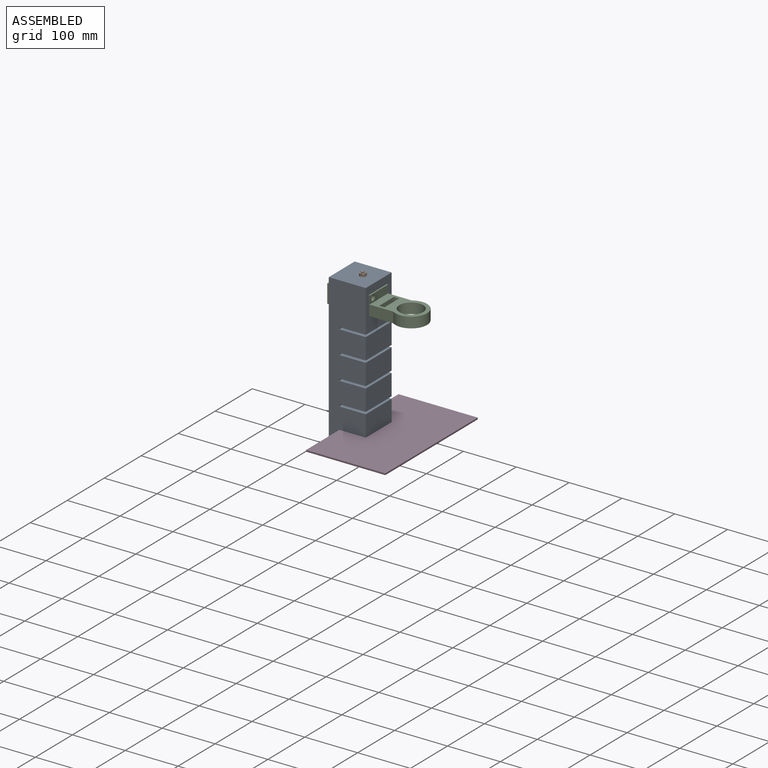
[diagram: assembled view]
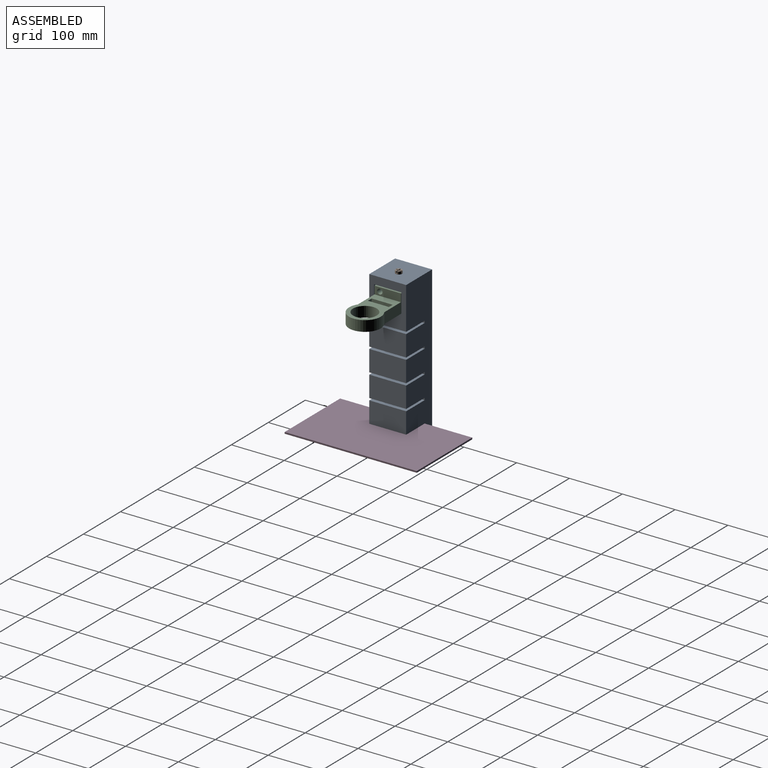
[diagram: assembled view, second angle]
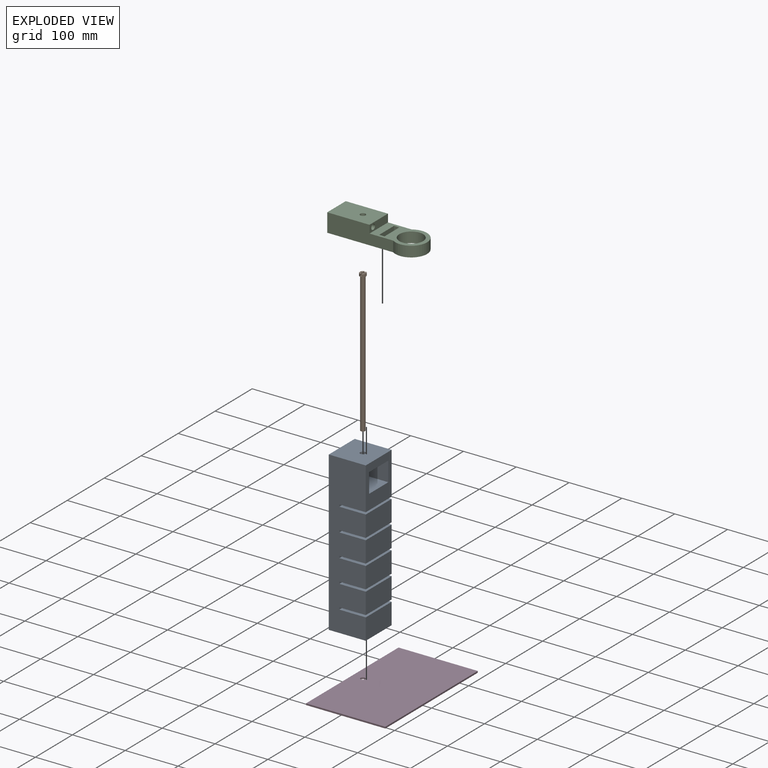
[diagram: exploded view]
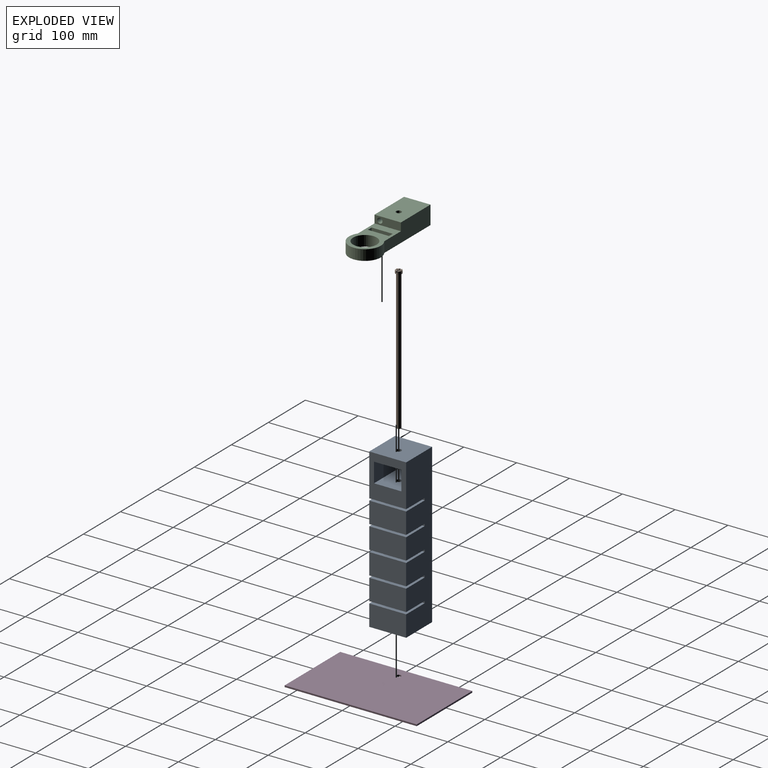
[diagram: exploded view, second angle]
ASSEMBLY  parts=4 mates=3
PART A: 38 faces, bbox 70x300x70 mm
  f0: plane 70x40mm, normal (1,0,0), area 2800mm2, adj f5,f6,f17,f28
  f1: plane 70x40mm, normal (1,0,0), area 2800mm2, adj f5,f6,f24,f27
  f2: plane 70x40mm, normal (1,0,0), area 2800mm2, adj f5,f6,f21,f26
  f3: plane 80x70mm, normal (1,0,0), area 3676mm2, adj f5,f6,f10,f11,f12,f13,f14,f18
  f4: plane 70x40mm, normal (1,0,0), area 2800mm2, adj f5,f6,f15,f20
  f5: plane 300x70mm, normal (0,0,1), area 20000mm2, adj f0,f1,f2,f3,f4,f7,f8,f9
  f6: plane 300x70mm, normal (0,0,-1), area 20000mm2, adj f0,f1,f2,f3,f4,f7,f8,f9
  f7: plane 300x70mm, normal (-1,0,0), area 19076mm2, adj f5,f6,f9,f10,f11,f12,f13,f14
  f8: plane 70x40mm, normal (1,0,0), area 2800mm2, adj f5,f6,f9,f23
  f9: plane 70x70mm, normal (0,-1,0), area 4900mm2, adj f5,f6,f7,f8
  f10: plane 70x70mm, normal (0,1,0), area 4821.5mm2, adj f3,f5,f6,f7,f37
  f11: plane 70x52mm, normal (0,-1,0), area 3561.5mm2, adj f3,f7,f12,f14,f37
  f12: plane 70x37mm, normal (0,0,-1), area 2590mm2, adj f3,f7,f11,f13
  f13: plane 70x52mm, normal (0,1,0), area 3561.5mm2, adj f3,f7,f12,f14,f36
  f14: plane 70x37mm, normal (0,0,1), area 2590mm2, adj f3,f7,f11,f13
  f15: plane 70x50mm, normal (0,-1,0), area 3421.5mm2, adj f4,f5,f6,f16,f35
  f16: plane 70x4mm, normal (1,0,0), area 280mm2, adj f5,f6,f15,f17
  f17: plane 70x50mm, normal (0,1,0), area 3421.5mm2, adj f0,f5,f6,f16,f30
  f18: plane 70x50mm, normal (0,-1,0), area 3421.5mm2, adj f3,f5,f6,f19,f36
  f19: plane 70x4mm, normal (1,0,0), area 280mm2, adj f5,f6,f18,f20
  f20: plane 70x50mm, normal (0,1,0), area 3421.5mm2, adj f4,f5,f6,f19,f35
  f21: plane 70x50mm, normal (0,-1,0), area 3421.5mm2, adj f2,f5,f6,f22,f32
  f22: plane 70x4mm, normal (1,0,0), area 280mm2, adj f5,f6,f21,f23
  f23: plane 70x50mm, normal (0,1,0), area 3421.5mm2, adj f5,f6,f8,f22,f34
  f24: plane 70x50mm, normal (0,-1,0), area 3421.5mm2, adj f1,f5,f6,f25,f31
  f25: plane 70x4mm, normal (1,0,0), area 280mm2, adj f5,f6,f24,f26
  f26: plane 70x50mm, normal (0,1,0), area 3421.5mm2, adj f2,f5,f6,f25,f32
  f27: plane 70x50mm, normal (0,1,0), area 3421.5mm2, adj f1,f5,f6,f29,f31
  f28: plane 70x50mm, normal (0,-1,0), area 3421.5mm2, adj f0,f5,f6,f29,f30
  f29: plane 70x4mm, normal (1,0,0), area 280mm2, adj f5,f6,f27,f28
  f30: cylinder r=5mm len=40mm, axis (0,1,0), area 1256.6mm2, adj f17,f28
  f31: cylinder r=5mm len=40mm, axis (0,1,0), area 1256.6mm2, adj f24,f27
  f32: cylinder r=5mm len=40mm, axis (0,1,0), area 1256.6mm2, adj f21,f26
  f33: plane 10x10mm, normal (0,1,0), area 78.5mm2, adj f34
  f34: cylinder r=5mm len=10mm, axis (0,1,0), area 157.1mm2, adj f23,f33
  f35: cylinder r=5mm len=40mm, axis (0,1,0), area 1256.6mm2, adj f15,f20
  f36: cylinder r=5mm len=28mm, axis (0,1,0), area 879.6mm2, adj f13,f18
  f37: cylinder r=5mm len=15mm, axis (0,1,0), area 471.2mm2, adj f10,f11
PART B: 17 faces, bbox 12.2x12.2x270.2 mm
  f0: cylinder r=6mm len=12mm, axis (0,0,-1), area 156.3mm2, adj f1,f2,f3,f4,f7,f8,f9,f10
  f1: plane 4.92x4.92mm, normal (0,0,1), area 17.3mm2, adj f0,f9,f16
  f2: plane 4.92x4.92mm, normal (0,0,1), area 17.3mm2, adj f0,f14,f15
  f3: plane 4.92x4.92mm, normal (0,0,1), area 17.3mm2, adj f0,f12,f13
  f4: plane 4.92x4.92mm, normal (0,0,1), area 17.3mm2, adj f0,f10,f11
  f5: cylinder r=4.25mm len=265mm, axis (0,0,-1), area 7076.4mm2, adj f6,f7
  f6: plane 8.5x8.5mm, normal (0,0,-1), area 56.7mm2, adj f5
  f7: plane 12x12mm, normal (0,0,-1), area 56.4mm2, adj f0,f5
  f8: plane 12x12mm, normal (0,0,1), area 43.3mm2, adj f0,f9,f10,f11,f12,f13,f14,f15
  f9: plane 4.92x4mm, normal (0,-1,0), area 19.7mm2, adj f0,f1,f8,f16
  f10: plane 4.92x4mm, normal (0,1,0), area 19.7mm2, adj f0,f4,f8,f11
  f11: plane 4.92x4mm, normal (-1,0,0), area 19.7mm2, adj f0,f4,f8,f10
  f12: plane 4.92x4mm, normal (1,0,0), area 19.7mm2, adj f0,f3,f8,f13
  f13: plane 4.92x4mm, normal (0,1,0), area 19.7mm2, adj f0,f3,f8,f12
  f14: plane 4.92x4mm, normal (0,-1,0), area 19.7mm2, adj f0,f2,f8,f15
  f15: plane 4.92x4mm, normal (1,0,0), area 19.7mm2, adj f0,f2,f8,f14
  f16: plane 4.92x4mm, normal (-1,0,0), area 19.7mm2, adj f0,f1,f8,f9
PART C: 15 faces, bbox 60x171.6x35 mm
  f0: plane 91.58x60mm, normal (0,0,1), area 2615mm2, adj f2,f3,f4,f5,f7,f9,f10,f11
  f1: plane 171.58x60mm, normal (0,0,-1), area 6536.4mm2, adj f2,f3,f4,f5,f6,f9,f10,f11
  f2: plane 125x35mm, normal (1,0,0), area 3700mm2, adj f0,f1,f3,f6,f7,f8
  f3: cylinder r=30mm len=60mm, axis (0,0,-1), area 2587.8mm2, adj f0,f1,f2,f4
  f4: plane 125x35mm, normal (-1,0,0), area 3700mm2, adj f0,f1,f3,f6,f7,f8
  f5: cylinder r=22.5mm len=45mm, axis (0,0,-1), area 2827.4mm2, adj f0,f1
  f6: plane 50x35mm, normal (0,-1,0), area 1671.5mm2, adj f1,f2,f4,f8,f13
  f7: plane 50x15mm, normal (0,1,0), area 671.5mm2, adj f0,f2,f4,f8,f13
  f8: plane 80x50mm, normal (0,0,1), area 3921.5mm2, adj f2,f4,f6,f7,f14
  f9: plane 20x10mm, normal (1,0,0), area 200mm2, adj f0,f1,f10,f12
  f10: plane 40x20mm, normal (0,1,0), area 800mm2, adj f0,f1,f9,f11
  f11: plane 20x10mm, normal (-1,0,0), area 200mm2, adj f0,f1,f10,f12
  f12: plane 40x20mm, normal (0,-1,0), area 800mm2, adj f0,f1,f9,f11
  f13: cylinder r=5mm len=80mm, axis (0,1,0), area 2513.3mm2, adj f6,f7
  f14: cylinder r=5mm len=35mm, axis (0,0,1), area 1099.6mm2, adj f1,f8
PART D: 7 faces, bbox 250x150x3 mm
  f0: plane 150x3mm, normal (1,0,0), area 450mm2, adj f1,f3,f4,f5
  f1: plane 250x3mm, normal (0,1,0), area 750mm2, adj f0,f2,f4,f5
  f2: plane 150x3mm, normal (-1,0,0), area 450mm2, adj f1,f3,f4,f5
  f3: plane 250x3mm, normal (0,-1,0), area 750mm2, adj f0,f2,f4,f5
  f4: plane 250x150mm, normal (0,0,1), area 37443.3mm2, adj f0,f1,f2,f3,f6
  f5: plane 250x150mm, normal (0,0,-1), area 37443.3mm2, adj f0,f1,f2,f3,f6
  f6: cylinder r=4.25mm len=8.5mm, axis (0,0,1), area 80.1mm2, adj f4,f5
PLACE A rot(axis=(1,0,0),90deg) t=(122.27,-54.18,119.72)mm
PLACE B t=(162.27,-89.18,154.72)mm
PLACE C rot(axis=(0,0,-1),90deg) t=(237.27,-104.62,367.72)mm
PLACE D rot(axis=(0,0,-1),90deg) t=(217.27,-89.18,160.72)mm
MATE planar C.f14 <-> A.f30  axis (0,0,-1) through (162.27,-89.18,367.72)mm
MATE slider D.f6 <-> A.f30  axis (0,0,1) through (162.27,-89.18,163.72)mm
MATE planar B.f0 <-> A.f30  axis (0,0,-1) through (162.27,-89.18,419.72)mm
